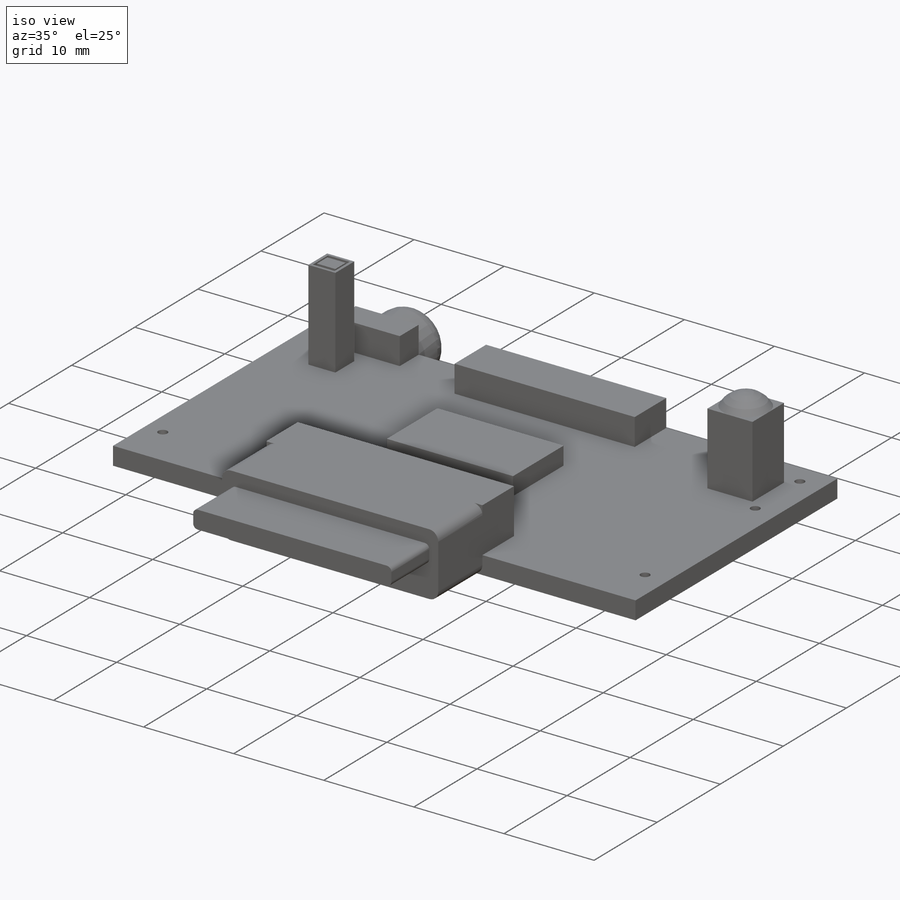
[diagram: iso view]
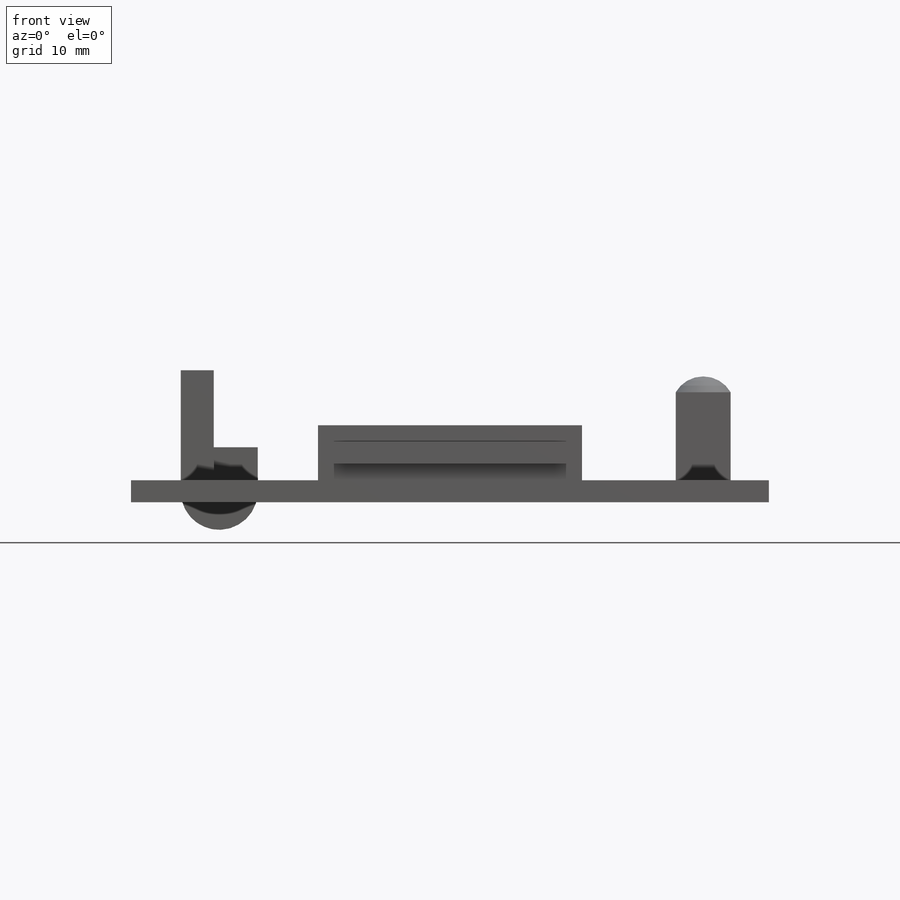
[diagram: front view]
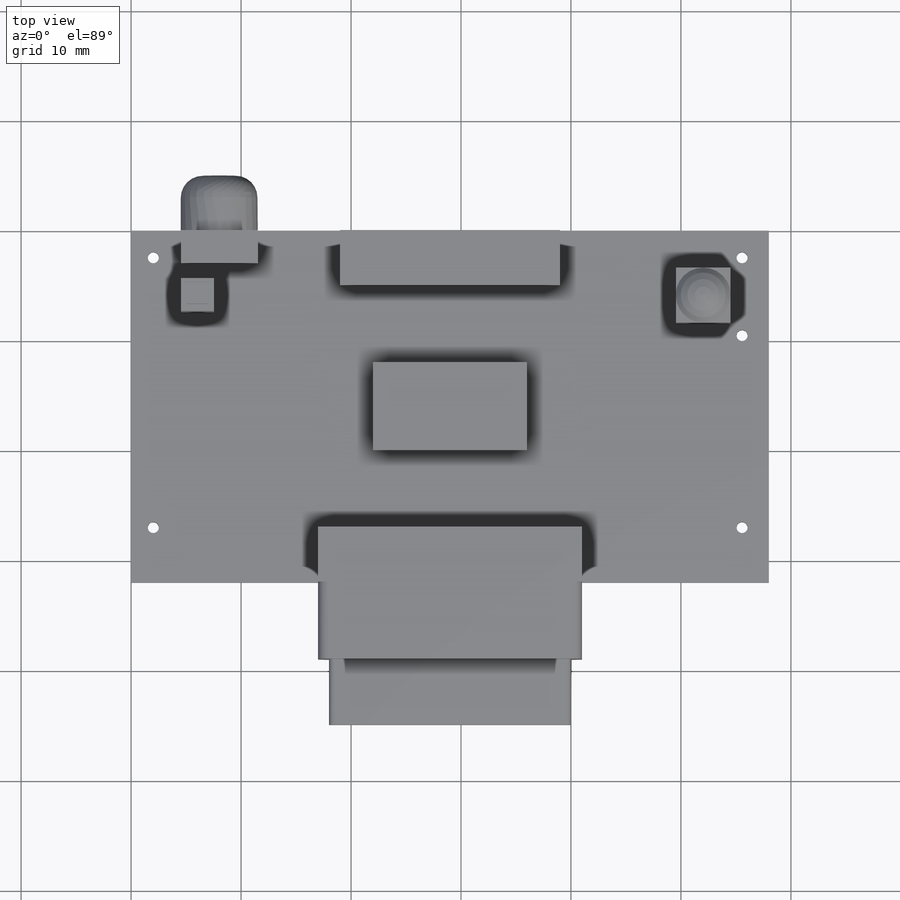
[diagram: top view]
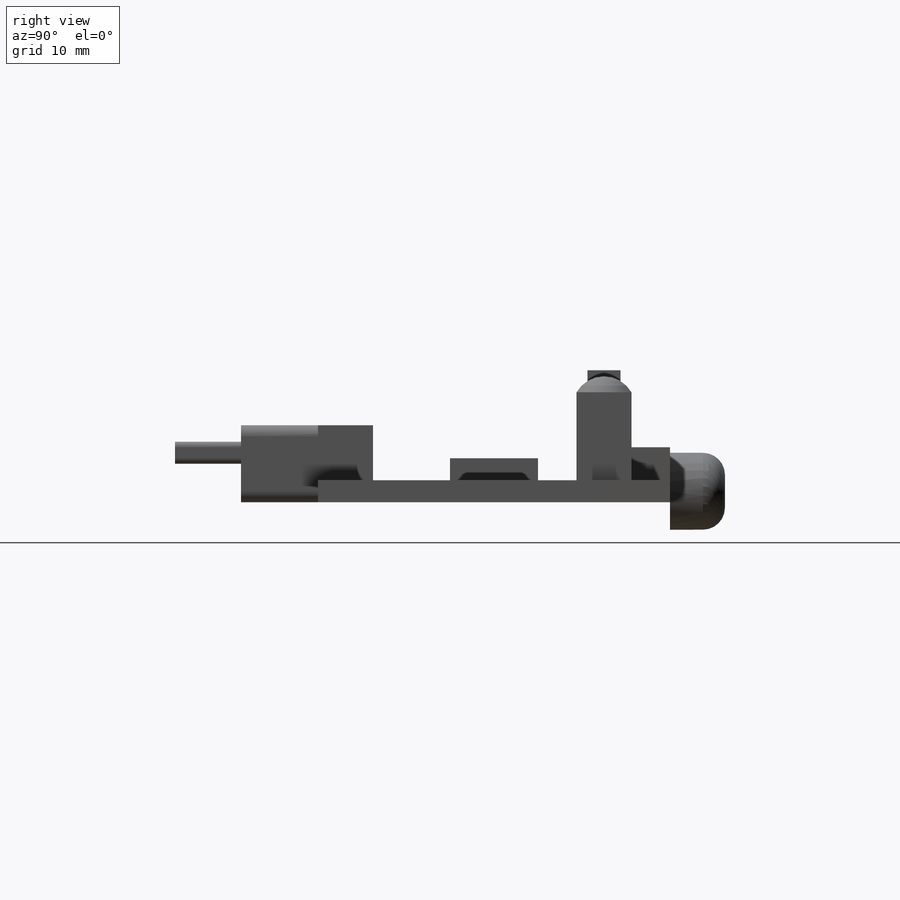
[diagram: right view]
SOLIDWORKS PART (.sldprt)
format: sldprt  version: not decoded by parser v0  size: 667,648 bytes
history: native  units: mm
features: sketch x15, extrude x12, material x1, cut_extrude x1, plane x1, revolve x1, fillet x1 (+16 scaffold rows collapsed; 4 parser-record rows omitted)
feature tree (52):
  scaffold x16  (default folders/planes/origin — collapsed)
  material  "Material <not specified>"
  sketch  "Sketch1"  dims[D1=32.0mm D2=58.0mm]
  extrude  "Extrude1"  Depth=2mm
  sketch  "Sketch2"  dims[D5=1.0mm D1=2.443mm D2=2.464mm D3=2.022mm D4=5.0mm D6=7.071mm]
  cut_extrude  "Cut-Extrude1"  [1 undecoded]
  parser-record x4  (decoder bookkeeping rows leaked as tree rows — omitted from the tree; the rows remain in map.json)
  sketch  "Sketch3"  dims[D1=5.0mm D2=5.0mm]
  extrude  "Extrude2"  Depth=8mm
  sketch  "Sketch5"
  plane  "Plane1"
  sketch  "Sketch6"  dims[c1.D1=~1.098513mm c2.D1=60.0deg]
  revolve  "Revolve1"  Angle=360deg
  sketch  "Sketch10"  dims[c1.D1=3.536mm c1.D2=3.536mm c2.D1=4.0mm c2.D3=3.0mm c2.D4=3.0mm c2.D5=0.8mm c2.D6=0.8mm c2.D7=0.8mm c2.D8=0.8mm]
  extrude  "flash led box"  Depth=9mm
  sketch  "Sketch12"  dims[D1=0.0mm D2=0.3mm]
  extrude  "Extrude4"  Depth=1mm
  sketch  "Sketch13"  dims[D1=2.04mm D2=1.64mm]
  extrude  "Extrude5"  Depth=1mm
  sketch  "Sketch14"  dims[D1=24.0mm D2=5.0mm]
  extrude  "Extrude6"  Depth=5mm
  sketch  "Sketch16"  dims[D1=7.0mm]
  extrude  "Extrude7"  Depth=7mm
  sketch  "Sketch17"  dims[D1=22.0mm D2=22.0mm D3=2.0mm D4=1.5mm]
  extrude  "Extrude8"  Depth=6mm
  sketch  "Sketch18"  dims[D1=20.0mm D2=5.0mm D3=~1.950297mm]
  extrude  "to lcd"  Depth=3mm
  sketch  "Sketch19"  dims[D1=14.0mm D2=8.0mm]
  extrude  "flash memory"  Depth=2mm
  sketch  "Sketch20"  dims[D1=3.98mm D2=12.0mm D3=7.0mm D4=3.0mm]
  extrude  "Extrude11"  Depth=3mm
  sketch  "Sketch21"  dims[D1=7.0mm D2=1.0mm]
  extrude  "Extrude12"  Depth=5mm
  fillet  "Fillet1"  Radius=2mm
decode coverage: 28 of 30 modeling features carry decoded parameters
note: ~ marks probable driven/reference dimensions
note: 1 parameter value undecoded
note: suppression state not decoded; provenance and decode notes live in map.json
